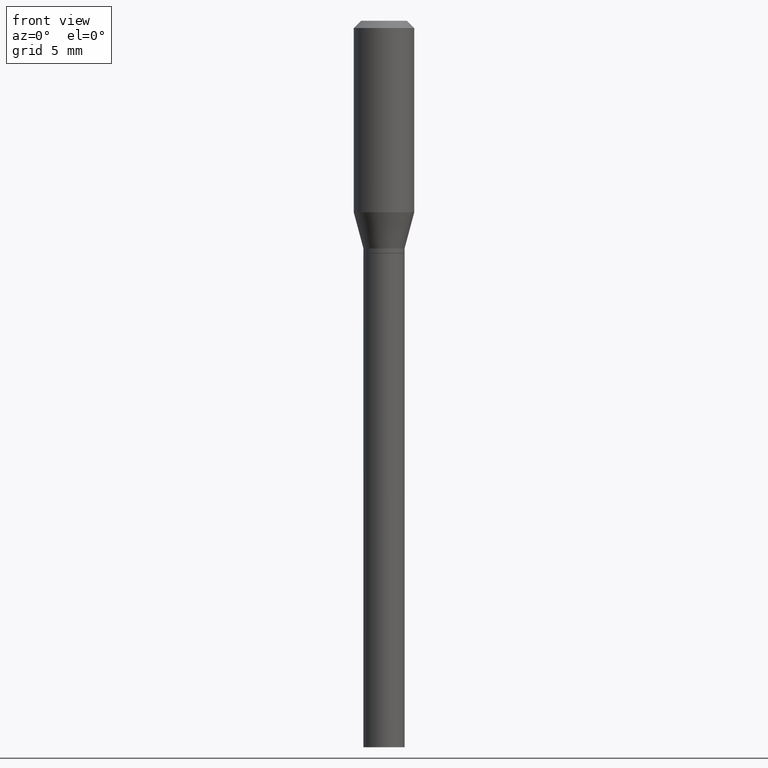
[diagram: clean part render]
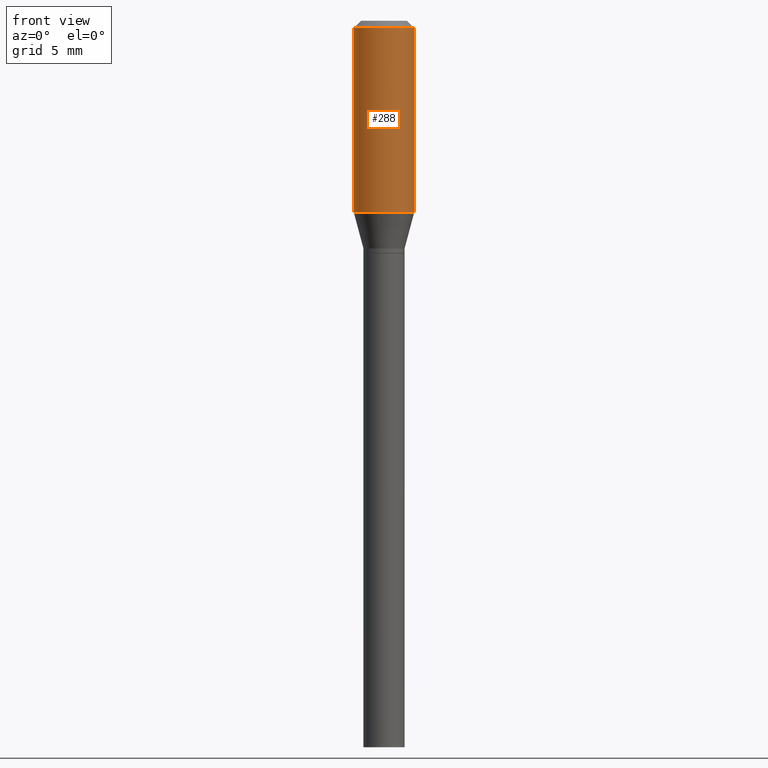
[diagram: same view with one face highlighted and labeled with its STEP entity id]
A machine part, front view. The second image highlights one B-rep face of the part: STEP entity #288.
In plain terms, the highlighted cylindrical surface (edge-blend (fillet) strip) has radius 1.5875 mm, axis along (-0, 0, 1).
Its self-contained STEP definition (entity closure, byte-faithful):
#8 = CARTESIAN_POINT ( 'NONE',  ( 0.06250000000000000000, -4.888073874380388472E-16, -0.01499999999999999944 ) ) ;
#26 = DIRECTION ( 'NONE',  ( -2.445468806185136597E-29, 3.491481338843145583E-15, 1.000000000000000000 ) ) ;
#29 = ORIENTED_EDGE ( 'NONE', *, *, #307, .F. ) ;
#37 = CARTESIAN_POINT ( 'NONE',  ( 0.000000000000000000, 0.000000000000000000, 0.000000000000000000 ) ) ;
#49 = VERTEX_POINT ( 'NONE', #413 ) ;
#72 = CIRCLE ( 'NONE', #398, 0.06250000000000000000 ) ;
#74 = DIRECTION ( 'NONE',  ( 1.000000000000000000, -6.982962677686266711E-15, 0.000000000000000000 ) ) ;
#79 = VERTEX_POINT ( 'NONE', #8 ) ;
#81 = ORIENTED_EDGE ( 'NONE', *, *, #106, .F. ) ;
#106 = EDGE_CURVE ( 'NONE', #243, #125, #451, .T. ) ;
#125 = VERTEX_POINT ( 'NONE', #132 ) ;
#132 = CARTESIAN_POINT ( 'NONE',  ( -0.06250000000000000000, -2.722911573169879398E-16, -0.01499999999999999944 ) ) ;
#141 = EDGE_CURVE ( 'NONE', #49, #79, #382, .T. ) ;
#183 = DIRECTION ( 'NONE',  ( 1.000000000000000000, -6.982962677686266711E-15, 0.000000000000000000 ) ) ;
#203 = CIRCLE ( 'NONE', #247, 0.06250000000000000000 ) ;
#204 = DIRECTION ( 'NONE',  ( -2.445468806185136877E-29, 3.491481338843145188E-15, 1.000000000000000000 ) ) ;
#205 = DIRECTION ( 'NONE',  ( -2.445468806185136597E-29, 3.491481338843145583E-15, 1.000000000000000000 ) ) ;
#243 = VERTEX_POINT ( 'NONE', #420 ) ;
#244 = DIRECTION ( 'NONE',  ( 1.000000000000000000, -6.982962677686266711E-15, 4.876176775795935793E-29 ) ) ;
#247 = AXIS2_PLACEMENT_3D ( 'NONE', #328, #205, #74 ) ;
#250 = CYLINDRICAL_SURFACE ( 'NONE', #290, 0.06250000000000000000 ) ;
#254 = VECTOR ( 'NONE', #204, 39.37007874015748143 ) ;
#258 = CARTESIAN_POINT ( 'NONE',  ( 9.668380622468593325E-30, -1.380388514251453836E-15, -0.3953589838486224473 ) ) ;
#288 = ADVANCED_FACE ( 'NONE', ( #361 ), #250, .T. ) ;
#290 = AXIS2_PLACEMENT_3D ( 'NONE', #37, #26, #244 ) ;
#296 = VECTOR ( 'NONE', #390, 39.37007874015748143 ) ;
#307 = EDGE_CURVE ( 'NONE', #125, #79, #203, .T. ) ;
#308 = CARTESIAN_POINT ( 'NONE',  ( 0.06250000000000000000, -4.364351673553916694E-16, 3.047610484872459871E-30 ) ) ;
#328 = CARTESIAN_POINT ( 'NONE',  ( 3.668203209277705088E-31, -5.237222008264718399E-17, -0.01499999999999999944 ) ) ;
#361 = FACE_OUTER_BOUND ( 'NONE', #466, .T. ) ;
#380 = CARTESIAN_POINT ( 'NONE',  ( -0.06250000000000000000, 4.440892098500626162E-16, -3.074334431409316114E-30 ) ) ;
#382 = LINE ( 'NONE', #308, #254 ) ;
#390 = DIRECTION ( 'NONE',  ( -2.445468806185136877E-29, 3.491481338843145188E-15, 1.000000000000000000 ) ) ;
#398 = AXIS2_PLACEMENT_3D ( 'NONE', #258, #402, #183 ) ;
#402 = DIRECTION ( 'NONE',  ( -2.445468806185136597E-29, 3.491481338843145583E-15, 1.000000000000000000 ) ) ;
#413 = CARTESIAN_POINT ( 'NONE',  ( 0.06250000000000000000, -1.816823681606845702E-15, -0.3953589838486224473 ) ) ;
#414 = ORIENTED_EDGE ( 'NONE', *, *, #141, .T. ) ;
#420 = CARTESIAN_POINT ( 'NONE',  ( -0.06250000000000000000, -9.362993044013910222E-16, -0.3953589838486224473 ) ) ;
#438 = ORIENTED_EDGE ( 'NONE', *, *, #465, .T. ) ;
#451 = LINE ( 'NONE', #380, #296 ) ;
#465 = EDGE_CURVE ( 'NONE', #243, #49, #72, .T. ) ;
#466 = EDGE_LOOP ( 'NONE', ( #81, #438, #414, #29 ) ) ;